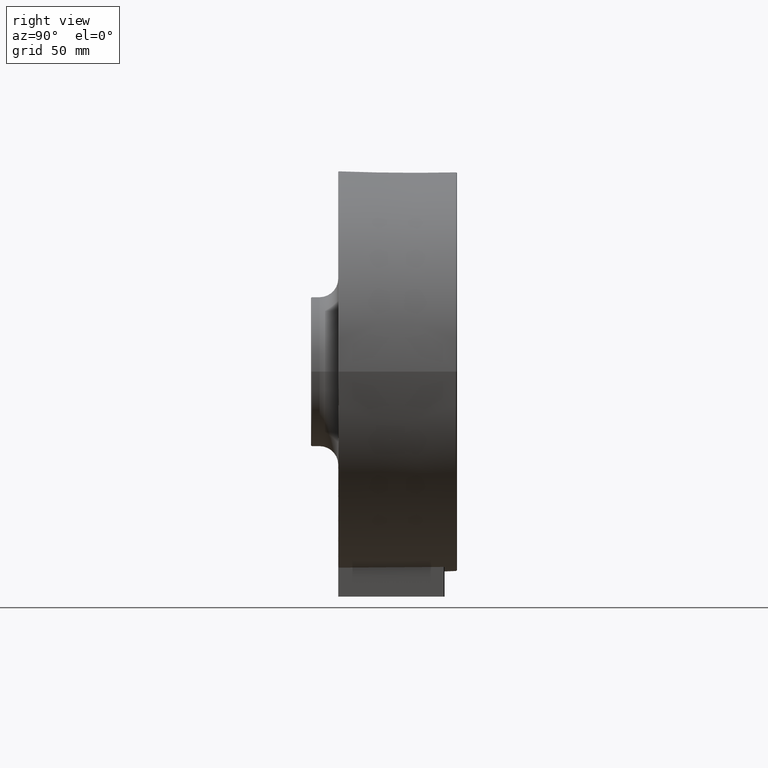
[diagram: clean part render]
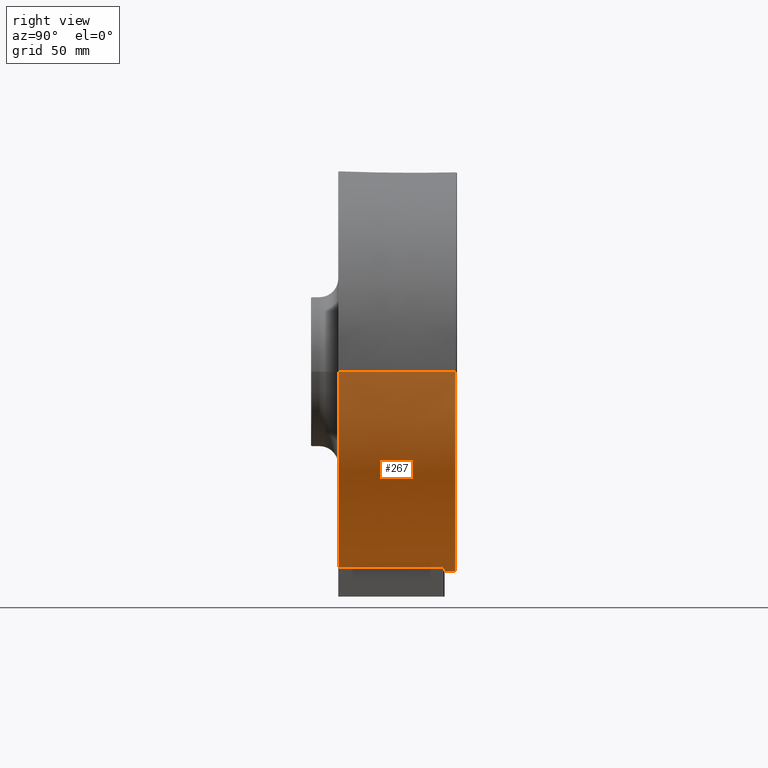
[diagram: same view with one face highlighted and labeled with its STEP entity id]
A machine part, right view. The second image highlights one B-rep face of the part: STEP entity #267.
In plain terms, the highlighted conical surface has half-angle 0.5 deg.
Its self-contained STEP definition (entity closure, byte-faithful):
#20 = CIRCLE ( 'NONE', #130, 160.8160002160959721 ) ;
#47 = ORIENTED_EDGE ( 'NONE', *, *, #2621, .F. ) ;
#78 = VERTEX_POINT ( 'NONE', #97 ) ;
#97 = CARTESIAN_POINT ( 'NONE',  ( -10.54008681929607860, 22.30375424050185273, -54.26261774934165061 ) ) ;
#98 = VERTEX_POINT ( 'NONE', #2905 ) ;
#120 = CARTESIAN_POINT ( 'NONE',  ( -9.501183016346947952, 105.8081175082510441, -54.99134928753080231 ) ) ;
#130 = AXIS2_PLACEMENT_3D ( 'NONE', #2664, #1358, #2380 ) ;
#175 = B_SPLINE_CURVE_WITH_KNOTS ( 'NONE', 3,
 ( #2242, #1212, #2224, #1707 ),
 .UNSPECIFIED., .F., .F.,
 ( 4, 4 ),
 ( 0.0009915354228547635599, 0.08450110931517015866 ),
 .UNSPECIFIED. ) ;
#185 = CARTESIAN_POINT ( 'NONE',  ( -9.346669771684812389, 106.6101689388071918, -55.39182653972108739 ) ) ;
#239 = CONICAL_SURFACE ( 'NONE', #2202, 159.9999999999999432, 0.008726646259963988933 ) ;
#245 = VERTEX_POINT ( 'NONE', #1420 ) ;
#263 = CARTESIAN_POINT ( 'NONE',  ( 175.4602250671952106, 106.6047603522306417, -156.2929373956087034 ) ) ;
#267 = ADVANCED_FACE ( 'NONE', ( #1174 ), #239, .T. ) ;
#340 = CARTESIAN_POINT ( 'NONE',  ( -19.15529814985206158, 115.8081175082510299, 0.0000000000000000000 ) ) ;
#436 = EDGE_CURVE ( 'NONE', #98, #78, #1306, .T. ) ;
#438 = DIRECTION ( 'NONE',  ( -1.000000000000000000, 8.669357584540577137E-17, 0.0000000000000000000 ) ) ;
#474 = VERTEX_POINT ( 'NONE', #1819 ) ;
#476 = ORIENTED_EDGE ( 'NONE', *, *, #436, .F. ) ;
#479 = CARTESIAN_POINT ( 'NONE',  ( -19.15529814985206158, 115.8081175082510299, 0.0000000000000000000 ) ) ;
#513 = ORIENTED_EDGE ( 'NONE', *, *, #2157, .F. ) ;
#555 = CIRCLE ( 'NONE', #1084, 160.0786179654382693 ) ;
#585 = CARTESIAN_POINT ( 'NONE',  ( 175.8533525626170899, 105.8081175082510299, -156.2124449845301513 ) ) ;
#611 = ORIENTED_EDGE ( 'NONE', *, *, #1798, .F. ) ;
#622 = CARTESIAN_POINT ( 'NONE',  ( -9.848680584581355646, 77.97334466045928991, -54.74843890490231502 ) ) ;
#663 = CARTESIAN_POINT ( 'NONE',  ( 300.8447018501478283, 115.8081175082510015, -1.959434878635764579E-14 ) ) ;
#682 = ORIENTED_EDGE ( 'NONE', *, *, #1444, .T. ) ;
#736 = VERTEX_POINT ( 'NONE', #2011 ) ;
#750 = CARTESIAN_POINT ( 'NONE',  ( 174.9831719449595084, 106.7993909727526614, -156.3961202480693373 ) ) ;
#758 = CARTESIAN_POINT ( 'NONE',  ( 140.8447018501478851, 22.30375424050183497, 0.0000000000000000000 ) ) ;
#766 = CARTESIAN_POINT ( 'NONE',  ( 175.8533525626170899, 105.8081175082510299, -156.2124449845301513 ) ) ;
#795 = ORIENTED_EDGE ( 'NONE', *, *, #1772, .F. ) ;
#887 = EDGE_CURVE ( 'NONE', #2652, #1910, #2700, .T. ) ;
#909 = VERTEX_POINT ( 'NONE', #585 ) ;
#930 = B_SPLINE_CURVE_WITH_KNOTS ( 'NONE', 3,
 ( #1630, #3116, #2658, #2454, #1384, #185, #3181, #1129, #1645, #1947 ),
 .UNSPECIFIED., .F., .F.,
 ( 4, 2, 2, 2, 4 ),
 ( 0.0000000000000000000, 0.0004018327365797181965, 0.0008036654731594363929, 0.001205498209739154589, 0.001607330946318872786 ),
 .UNSPECIFIED. ) ;
#1035 = AXIS2_PLACEMENT_3D ( 'NONE', #758, #1767, #1520 ) ;
#1084 = AXIS2_PLACEMENT_3D ( 'NONE', #1853, #2972, #438 ) ;
#1098 = DIRECTION ( 'NONE',  ( -1.214623636765614367E-16, -1.000000000000000000, -0.0000000000000000000 ) ) ;
#1129 = CARTESIAN_POINT ( 'NONE',  ( -9.217093740597004370, 106.7750018634922213, -55.73782713228472119 ) ) ;
#1174 = FACE_OUTER_BOUND ( 'NONE', #2608, .T. ) ;
#1212 = CARTESIAN_POINT ( 'NONE',  ( 176.0962630533017261, 77.97333227844789860, -156.4069423465496982 ) ) ;
#1242 = VECTOR ( 'NONE', #2222, 1000.000000000000227 ) ;
#1282 = CARTESIAN_POINT ( 'NONE',  ( 175.8510330120444678, 106.0739116772738555, -156.2105877305837964 ) ) ;
#1297 = CARTESIAN_POINT ( 'NONE',  ( 175.3501222234094996, 106.6768904861272063, -156.3166568206813167 ) ) ;
#1306 = CIRCLE ( 'NONE', #1035, 160.8160002160959721 ) ;
#1339 = VERTEX_POINT ( 'NONE', #2945 ) ;
#1358 = DIRECTION ( 'NONE',  ( -1.214623636765614367E-16, -1.000000000000000000, -0.0000000000000000000 ) ) ;
#1362 = B_SPLINE_CURVE_WITH_KNOTS ( 'NONE', 3,
 ( #2261, #750, #2007, #1297, #263, #2807, #1282, #766 ),
 .UNSPECIFIED., .F., .F.,
 ( 4, 2, 2, 4 ),
 ( 0.0000000000000000000, 0.0003928350493066077491, 0.0007856700986132154983, 0.001571340197226460920 ),
 .UNSPECIFIED. ) ;
#1384 = CARTESIAN_POINT ( 'NONE',  ( -9.417032291687318590, 106.4308820278856729, -55.20520572903459566 ) ) ;
#1386 = DIRECTION ( 'NONE',  ( -0.008726535498366397303, -0.9999619230641713097, 0.0000000000000000000 ) ) ;
#1394 = B_SPLINE_CURVE_WITH_KNOTS ( 'NONE', 3,
 ( #2394, #2424, #622, #120 ),
 .UNSPECIFIED., .F., .F.,
 ( 4, 4 ),
 ( 2.000229869334927163E-07, 0.08351420516893201529 ),
 .UNSPECIFIED. ) ;
#1411 = AXIS2_PLACEMENT_3D ( 'NONE', #2094, #1098, #2864 ) ;
#1420 = CARTESIAN_POINT ( 'NONE',  ( -9.501183016346947952, 105.8081175082510441, -54.99134928753080231 ) ) ;
#1444 = EDGE_CURVE ( 'NONE', #1910, #736, #2960, .T. ) ;
#1503 = ORIENTED_EDGE ( 'NONE', *, *, #887, .T. ) ;
#1520 = DIRECTION ( 'NONE',  ( 1.000000000000000000, -1.294440956356913246E-16, 0.0000000000000000000 ) ) ;
#1630 = CARTESIAN_POINT ( 'NONE',  ( -9.501183016346947952, 105.8081175082510441, -54.99134928753080231 ) ) ;
#1645 = CARTESIAN_POINT ( 'NONE',  ( -9.169883891077279969, 106.7993909727526898, -55.86417823997994248 ) ) ;
#1669 = CARTESIAN_POINT ( 'NONE',  ( 140.8447018501478851, 115.8081175082510157, 0.0000000000000000000 ) ) ;
#1707 = CARTESIAN_POINT ( 'NONE',  ( 176.5820841008062132, 22.30375424050183142, -156.7948514313327451 ) ) ;
#1767 = DIRECTION ( 'NONE',  ( -1.214623636765614367E-16, -1.000000000000000000, -0.0000000000000000000 ) ) ;
#1771 = VECTOR ( 'NONE', #1386, 1000.000000000000227 ) ;
#1772 = EDGE_CURVE ( 'NONE', #2652, #98, #1839, .T. ) ;
#1798 = EDGE_CURVE ( 'NONE', #1339, #736, #20, .T. ) ;
#1814 = EDGE_CURVE ( 'NONE', #474, #2176, #555, .T. ) ;
#1817 = ORIENTED_EDGE ( 'NONE', *, *, #3209, .F. ) ;
#1819 = CARTESIAN_POINT ( 'NONE',  ( 174.8533906395529129, 106.7993909727526614, -156.4243363947890657 ) ) ;
#1839 = LINE ( 'NONE', #340, #1771 ) ;
#1853 = CARTESIAN_POINT ( 'NONE',  ( 140.8447018501478851, 106.7993909727526614, 0.0000000000000000000 ) ) ;
#1910 = VERTEX_POINT ( 'NONE', #2519 ) ;
#1947 = CARTESIAN_POINT ( 'NONE',  ( -9.122417874953992367, 106.7993909727526756, -55.99131121059497218 ) ) ;
#2000 = ORIENTED_EDGE ( 'NONE', *, *, #1814, .T. ) ;
#2007 = CARTESIAN_POINT ( 'NONE',  ( 175.1103798939634260, 106.7744315798510399, -156.3685135024163060 ) ) ;
#2011 = CARTESIAN_POINT ( 'NONE',  ( 301.6607020662438572, 22.30375424050181365, 0.0000000000000000000 ) ) ;
#2050 = ORIENTED_EDGE ( 'NONE', *, *, #3054, .F. ) ;
#2094 = CARTESIAN_POINT ( 'NONE',  ( 140.8447018501478851, 115.8081175082510157, 0.0000000000000000000 ) ) ;
#2157 = EDGE_CURVE ( 'NONE', #245, #2176, #930, .T. ) ;
#2176 = VERTEX_POINT ( 'NONE', #2720 ) ;
#2185 = DIRECTION ( 'NONE',  ( -1.214623636765614367E-16, -1.000000000000000000, 0.0000000000000000000 ) ) ;
#2202 = AXIS2_PLACEMENT_3D ( 'NONE', #1669, #2185, #3214 ) ;
#2222 = DIRECTION ( 'NONE',  ( 0.008726535498366154442, -0.9999619230641713097, -1.068692376572001036E-18 ) ) ;
#2224 = CARTESIAN_POINT ( 'NONE',  ( 176.3391735661541588, 50.13854450847057365, -156.6010764847312657 ) ) ;
#2242 = CARTESIAN_POINT ( 'NONE',  ( 175.8533525626170899, 105.8081175082510299, -156.2124449845301513 ) ) ;
#2261 = CARTESIAN_POINT ( 'NONE',  ( 174.8533906395529129, 106.7993909727526614, -156.4243363947890657 ) ) ;
#2380 = DIRECTION ( 'NONE',  ( 1.000000000000000000, -1.294440956356913246E-16, 0.0000000000000000000 ) ) ;
#2394 = CARTESIAN_POINT ( 'NONE',  ( -10.54008681929607860, 22.30375424050185273, -54.26261774934165061 ) ) ;
#2424 = CARTESIAN_POINT ( 'NONE',  ( -10.19497364431444097, 50.13855675136560563, -54.50552839083584900 ) ) ;
#2454 = CARTESIAN_POINT ( 'NONE',  ( -9.446480135583406934, 106.3208000968892293, -55.12771513725881789 ) ) ;
#2519 = CARTESIAN_POINT ( 'NONE',  ( 300.8447018501478283, 115.8081175082510015, -1.964431438899491854E-14 ) ) ;
#2608 = EDGE_LOOP ( 'NONE', ( #1503, #682, #611, #47, #1817, #2000, #513, #2050, #476, #795 ) ) ;
#2621 = EDGE_CURVE ( 'NONE', #909, #1339, #175, .T. ) ;
#2652 = VERTEX_POINT ( 'NONE', #479 ) ;
#2658 = CARTESIAN_POINT ( 'NONE',  ( -9.487662387248613882, 106.0771179303535519, -55.02150020342077141 ) ) ;
#2664 = CARTESIAN_POINT ( 'NONE',  ( 140.8447018501478851, 22.30375424050183497, 0.0000000000000000000 ) ) ;
#2700 = CIRCLE ( 'NONE', #1411, 159.9999999999999432 ) ;
#2720 = CARTESIAN_POINT ( 'NONE',  ( -9.122417874953992367, 106.7993909727526756, -55.99131121059497218 ) ) ;
#2807 = CARTESIAN_POINT ( 'NONE',  ( 175.7386164532910016, 106.3321636246243713, -156.2335434524396192 ) ) ;
#2864 = DIRECTION ( 'NONE',  ( 1.000000000000000000, -8.673617379884039170E-17, 0.0000000000000000000 ) ) ;
#2905 = CARTESIAN_POINT ( 'NONE',  ( -19.97129836594808339, 22.30375424050185629, -1.969427999163220075E-14 ) ) ;
#2945 = CARTESIAN_POINT ( 'NONE',  ( 176.5820841008062132, 22.30375424050183142, -156.7948514313327451 ) ) ;
#2960 = LINE ( 'NONE', #663, #1242 ) ;
#2972 = DIRECTION ( 'NONE',  ( 1.214623636765614367E-16, 1.000000000000000000, -0.0000000000000000000 ) ) ;
#3054 = EDGE_CURVE ( 'NONE', #78, #245, #1394, .T. ) ;
#3116 = CARTESIAN_POINT ( 'NONE',  ( -9.499486192973861876, 105.9440341231265563, -54.99253541385939315 ) ) ;
#3181 = CARTESIAN_POINT ( 'NONE',  ( -9.305204473123557918, 106.6808880119779275, -55.50240042331010670 ) ) ;
#3209 = EDGE_CURVE ( 'NONE', #474, #909, #1362, .T. ) ;
#3214 = DIRECTION ( 'NONE',  ( -1.000000000000000000, 8.673617379884039170E-17, 0.0000000000000000000 ) ) ;